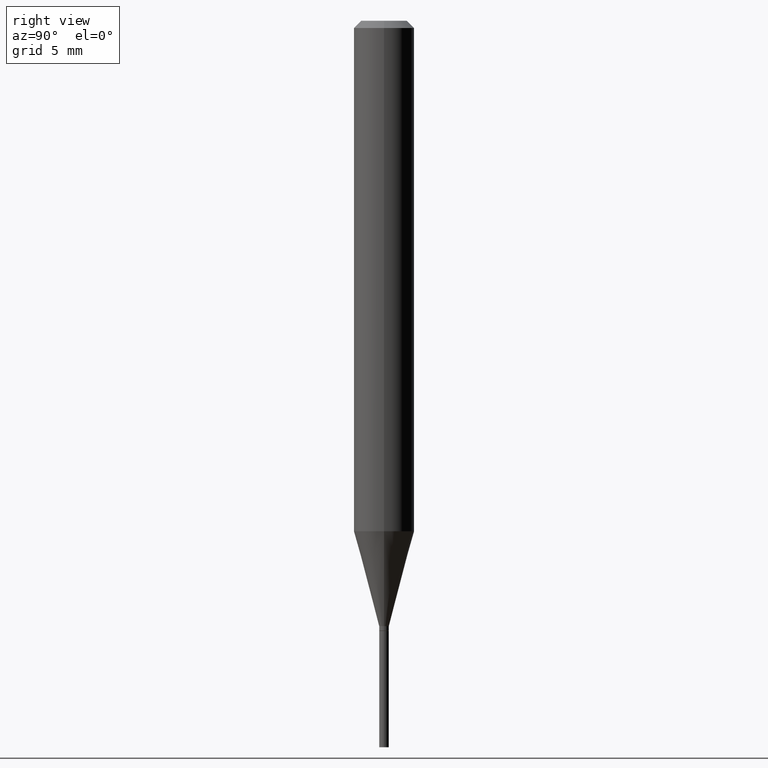
[diagram: clean part render]
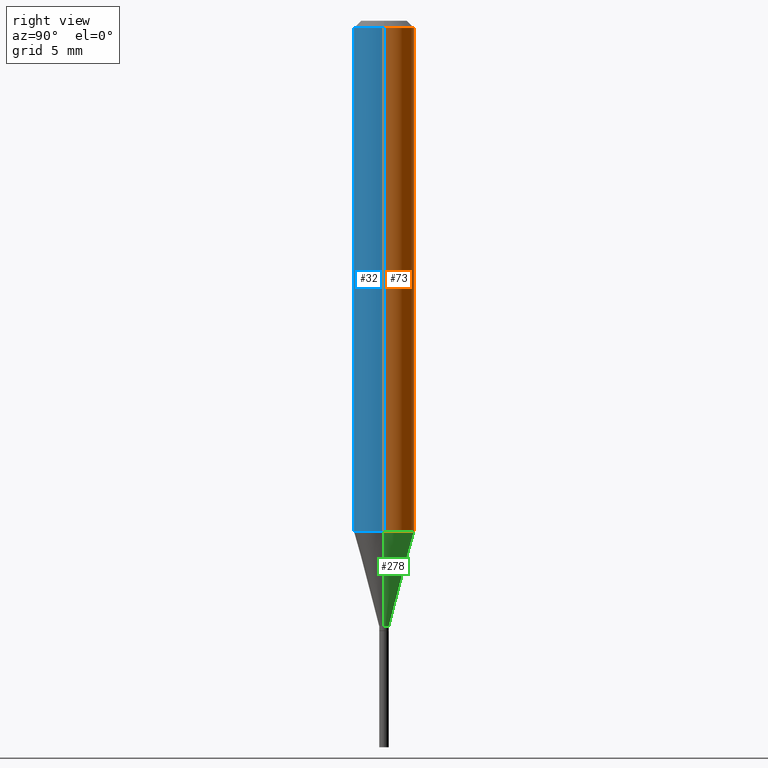
[diagram: same view with three faces highlighted in distinct colors, each labeled with its STEP entity id]
A machine part, right view with three faces highlighted in distinct colors.
Their STEP definitions:

[orange] entity #73 — the highlighted cylindrical surface (edge-blend (fillet) strip) has radius 1.5875 mm, axis along (-0, 0, 1).
#8 = CARTESIAN_POINT ( 'NONE',  ( -0.06250000000000000000, -3.236167211816206291E-15, -1.054067332602634188 ) ) ;
#11 = LINE ( 'NONE', #397, #440 ) ;
#24 = CARTESIAN_POINT ( 'NONE',  ( 0.06250000000000000000, -4.364351673553916694E-16, 3.047610484872459871E-30 ) ) ;
#43 = VERTEX_POINT ( 'NONE', #189 ) ;
#49 = VERTEX_POINT ( 'NONE', #8 ) ;
#65 = CARTESIAN_POINT ( 'NONE',  ( 0.000000000000000000, 0.000000000000000000, 0.000000000000000000 ) ) ;
#73 = ADVANCED_FACE ( 'NONE', ( #319 ), #450, .T. ) ;
#77 = ORIENTED_EDGE ( 'NONE', *, *, #171, .F. ) ;
#89 = VECTOR ( 'NONE', #287, 39.37007874015748143 ) ;
#94 = DIRECTION ( 'NONE',  ( 1.000000000000000000, -6.982962677686270655E-15, 0.000000000000000000 ) ) ;
#99 = ORIENTED_EDGE ( 'NONE', *, *, #123, .F. ) ;
#100 = DIRECTION ( 'NONE',  ( 1.000000000000000000, -6.982962677686266711E-15, 0.000000000000000000 ) ) ;
#119 = CARTESIAN_POINT ( 'NONE',  ( 0.06250000000000000000, -4.888073874380388472E-16, -0.01499999999999999944 ) ) ;
#123 = EDGE_CURVE ( 'NONE', #303, #243, #137, .T. ) ;
#126 = AXIS2_PLACEMENT_3D ( 'NONE', #313, #132, #94 ) ;
#132 = DIRECTION ( 'NONE',  ( -2.445468806185136597E-29, 3.491481338843145583E-15, 1.000000000000000000 ) ) ;
#137 = LINE ( 'NONE', #24, #89 ) ;
#140 = DIRECTION ( 'NONE',  ( -2.445468806185136597E-29, 3.491481338843145583E-15, 1.000000000000000000 ) ) ;
#153 = EDGE_LOOP ( 'NONE', ( #240, #198, #77, #99 ) ) ;
#158 = AXIS2_PLACEMENT_3D ( 'NONE', #413, #277, #100 ) ;
#171 = EDGE_CURVE ( 'NONE', #243, #43, #429, .T. ) ;
#189 = CARTESIAN_POINT ( 'NONE',  ( -0.06250000000000000000, -1.422225111024395377E-15, -0.01499999999999999944 ) ) ;
#198 = ORIENTED_EDGE ( 'NONE', *, *, #295, .T. ) ;
#205 = DIRECTION ( 'NONE',  ( 1.000000000000000000, -6.982962677686266711E-15, 4.876176775795935793E-29 ) ) ;
#225 = CARTESIAN_POINT ( 'NONE',  ( 0.06250000000000000000, -4.116691589021660182E-15, -1.054067332602634188 ) ) ;
#235 = CIRCLE ( 'NONE', #126, 0.06250000000000000000 ) ;
#240 = ORIENTED_EDGE ( 'NONE', *, *, #273, .T. ) ;
#243 = VERTEX_POINT ( 'NONE', #119 ) ;
#264 = DIRECTION ( 'NONE',  ( -2.445468806185136877E-29, 3.491481338843145188E-15, 1.000000000000000000 ) ) ;
#273 = EDGE_CURVE ( 'NONE', #303, #49, #235, .T. ) ;
#277 = DIRECTION ( 'NONE',  ( -2.445468806185136597E-29, 3.491481338843145583E-15, 1.000000000000000000 ) ) ;
#287 = DIRECTION ( 'NONE',  ( -2.445468806185136877E-29, 3.491481338843145188E-15, 1.000000000000000000 ) ) ;
#295 = EDGE_CURVE ( 'NONE', #49, #43, #11, .T. ) ;
#297 = AXIS2_PLACEMENT_3D ( 'NONE', #65, #140, #205 ) ;
#303 = VERTEX_POINT ( 'NONE', #225 ) ;
#313 = CARTESIAN_POINT ( 'NONE',  ( 2.577688781498515070E-29, -3.680256421666268512E-15, -1.054067332602634188 ) ) ;
#319 = FACE_OUTER_BOUND ( 'NONE', #153, .T. ) ;
#397 = CARTESIAN_POINT ( 'NONE',  ( -0.06250000000000000000, 4.440892098500626162E-16, -3.074334431409316114E-30 ) ) ;
#413 = CARTESIAN_POINT ( 'NONE',  ( 3.668203209277705088E-31, -5.237222008264718399E-17, -0.01499999999999999944 ) ) ;
#429 = CIRCLE ( 'NONE', #158, 0.06250000000000000000 ) ;
#440 = VECTOR ( 'NONE', #264, 39.37007874015748143 ) ;
#450 = CYLINDRICAL_SURFACE ( 'NONE', #297, 0.06250000000000000000 ) ;

[blue] entity #32 — the highlighted cylindrical surface (edge-blend (fillet) strip) has radius 1.5875 mm, axis along (-0, 0, 1).
#8 = CARTESIAN_POINT ( 'NONE',  ( -0.06250000000000000000, -3.236167211816206291E-15, -1.054067332602634188 ) ) ;
#11 = LINE ( 'NONE', #397, #440 ) ;
#21 = CARTESIAN_POINT ( 'NONE',  ( 3.668203209277705088E-31, -5.237222008264718399E-17, -0.01499999999999999944 ) ) ;
#22 = FACE_OUTER_BOUND ( 'NONE', #398, .T. ) ;
#24 = CARTESIAN_POINT ( 'NONE',  ( 0.06250000000000000000, -4.364351673553916694E-16, 3.047610484872459871E-30 ) ) ;
#32 = ADVANCED_FACE ( 'NONE', ( #22 ), #66, .T. ) ;
#37 = CARTESIAN_POINT ( 'NONE',  ( 2.577688781498515070E-29, -3.680256421666268512E-15, -1.054067332602634188 ) ) ;
#43 = VERTEX_POINT ( 'NONE', #189 ) ;
#49 = VERTEX_POINT ( 'NONE', #8 ) ;
#66 = CYLINDRICAL_SURFACE ( 'NONE', #203, 0.06250000000000000000 ) ;
#89 = VECTOR ( 'NONE', #287, 39.37007874015748143 ) ;
#92 = CARTESIAN_POINT ( 'NONE',  ( 0.000000000000000000, 0.000000000000000000, 0.000000000000000000 ) ) ;
#103 = DIRECTION ( 'NONE',  ( 1.000000000000000000, -6.982962677686266711E-15, 0.000000000000000000 ) ) ;
#107 = DIRECTION ( 'NONE',  ( 1.000000000000000000, -6.982962677686270655E-15, 0.000000000000000000 ) ) ;
#119 = CARTESIAN_POINT ( 'NONE',  ( 0.06250000000000000000, -4.888073874380388472E-16, -0.01499999999999999944 ) ) ;
#123 = EDGE_CURVE ( 'NONE', #303, #243, #137, .T. ) ;
#137 = LINE ( 'NONE', #24, #89 ) ;
#151 = EDGE_CURVE ( 'NONE', #43, #243, #316, .T. ) ;
#160 = ORIENTED_EDGE ( 'NONE', *, *, #295, .F. ) ;
#166 = AXIS2_PLACEMENT_3D ( 'NONE', #37, #290, #107 ) ;
#178 = CIRCLE ( 'NONE', #166, 0.06250000000000000000 ) ;
#189 = CARTESIAN_POINT ( 'NONE',  ( -0.06250000000000000000, -1.422225111024395377E-15, -0.01499999999999999944 ) ) ;
#192 = ORIENTED_EDGE ( 'NONE', *, *, #216, .T. ) ;
#203 = AXIS2_PLACEMENT_3D ( 'NONE', #92, #412, #448 ) ;
#216 = EDGE_CURVE ( 'NONE', #49, #303, #178, .T. ) ;
#225 = CARTESIAN_POINT ( 'NONE',  ( 0.06250000000000000000, -4.116691589021660182E-15, -1.054067332602634188 ) ) ;
#243 = VERTEX_POINT ( 'NONE', #119 ) ;
#264 = DIRECTION ( 'NONE',  ( -2.445468806185136877E-29, 3.491481338843145188E-15, 1.000000000000000000 ) ) ;
#285 = DIRECTION ( 'NONE',  ( -2.445468806185136597E-29, 3.491481338843145583E-15, 1.000000000000000000 ) ) ;
#287 = DIRECTION ( 'NONE',  ( -2.445468806185136877E-29, 3.491481338843145188E-15, 1.000000000000000000 ) ) ;
#290 = DIRECTION ( 'NONE',  ( -2.445468806185136597E-29, 3.491481338843145583E-15, 1.000000000000000000 ) ) ;
#295 = EDGE_CURVE ( 'NONE', #49, #43, #11, .T. ) ;
#303 = VERTEX_POINT ( 'NONE', #225 ) ;
#316 = CIRCLE ( 'NONE', #371, 0.06250000000000000000 ) ;
#341 = ORIENTED_EDGE ( 'NONE', *, *, #151, .F. ) ;
#367 = ORIENTED_EDGE ( 'NONE', *, *, #123, .T. ) ;
#371 = AXIS2_PLACEMENT_3D ( 'NONE', #21, #285, #103 ) ;
#397 = CARTESIAN_POINT ( 'NONE',  ( -0.06250000000000000000, 4.440892098500626162E-16, -3.074334431409316114E-30 ) ) ;
#398 = EDGE_LOOP ( 'NONE', ( #160, #192, #367, #341 ) ) ;
#412 = DIRECTION ( 'NONE',  ( -2.445468806185136597E-29, 3.491481338843145583E-15, 1.000000000000000000 ) ) ;
#440 = VECTOR ( 'NONE', #264, 39.37007874015748143 ) ;
#448 = DIRECTION ( 'NONE',  ( 1.000000000000000000, -6.982962677686266711E-15, 4.876176775795935793E-29 ) ) ;

[green] entity #278 — the highlighted conical surface has half-angle 15 deg.
#4 = AXIS2_PLACEMENT_3D ( 'NONE', #5, #220, #301 ) ;
#5 = CARTESIAN_POINT ( 'NONE',  ( 3.056836007731421306E-29, -4.364351673553932471E-15, -1.250000000000000000 ) ) ;
#8 = CARTESIAN_POINT ( 'NONE',  ( -0.06250000000000000000, -3.236167211816206291E-15, -1.054067332602634188 ) ) ;
#49 = VERTEX_POINT ( 'NONE', #8 ) ;
#58 = EDGE_CURVE ( 'NONE', #95, #303, #436, .T. ) ;
#61 = CARTESIAN_POINT ( 'NONE',  ( -0.009999999999999923880, -4.293297399977923178E-15, -1.250000000000000000 ) ) ;
#78 = EDGE_CURVE ( 'NONE', #95, #394, #134, .T. ) ;
#94 = DIRECTION ( 'NONE',  ( 1.000000000000000000, -6.982962677686270655E-15, 0.000000000000000000 ) ) ;
#95 = VERTEX_POINT ( 'NONE', #356 ) ;
#112 = ORIENTED_EDGE ( 'NONE', *, *, #334, .T. ) ;
#126 = AXIS2_PLACEMENT_3D ( 'NONE', #313, #132, #94 ) ;
#132 = DIRECTION ( 'NONE',  ( -2.445468806185136597E-29, 3.491481338843145583E-15, 1.000000000000000000 ) ) ;
#134 = CIRCLE ( 'NONE', #427, 0.009999999999999923880 ) ;
#152 = VECTOR ( 'NONE', #279, 39.37007874015747433 ) ;
#217 = CONICAL_SURFACE ( 'NONE', #4, 0.009999999999999923880, 0.2617993877991500740 ) ;
#220 = DIRECTION ( 'NONE',  ( -2.445468806185136597E-29, 3.491481338843145583E-15, 1.000000000000000000 ) ) ;
#222 = FACE_OUTER_BOUND ( 'NONE', #402, .T. ) ;
#225 = CARTESIAN_POINT ( 'NONE',  ( 0.06250000000000000000, -4.116691589021660182E-15, -1.054067332602634188 ) ) ;
#229 = CARTESIAN_POINT ( 'NONE',  ( 0.009999999999999923880, -4.434181300330794192E-15, -1.250000000000000000 ) ) ;
#235 = CIRCLE ( 'NONE', #126, 0.06250000000000000000 ) ;
#249 = CARTESIAN_POINT ( 'NONE',  ( 3.056836007731421306E-29, -4.364351673553932471E-15, -1.250000000000000000 ) ) ;
#273 = EDGE_CURVE ( 'NONE', #303, #49, #235, .T. ) ;
#274 = DIRECTION ( 'NONE',  ( 0.2588190451025213501, 1.565188264969621968E-15, 0.9659258262890682012 ) ) ;
#278 = ADVANCED_FACE ( 'NONE', ( #222 ), #217, .T. ) ;
#279 = DIRECTION ( 'NONE',  ( -0.2588190451025213501, 5.211531920934551042E-15, 0.9659258262890682012 ) ) ;
#301 = DIRECTION ( 'NONE',  ( 1.000000000000000000, -6.982962677686239889E-15, 0.000000000000000000 ) ) ;
#303 = VERTEX_POINT ( 'NONE', #225 ) ;
#313 = CARTESIAN_POINT ( 'NONE',  ( 2.577688781498515070E-29, -3.680256421666268512E-15, -1.054067332602634188 ) ) ;
#315 = DIRECTION ( 'NONE',  ( -2.445468806185136597E-29, 3.491481338843145583E-15, 1.000000000000000000 ) ) ;
#334 = EDGE_CURVE ( 'NONE', #394, #49, #359, .T. ) ;
#337 = ORIENTED_EDGE ( 'NONE', *, *, #58, .F. ) ;
#356 = CARTESIAN_POINT ( 'NONE',  ( 0.009999999999999923880, -4.434181300330794192E-15, -1.250000000000000000 ) ) ;
#359 = LINE ( 'NONE', #61, #152 ) ;
#386 = DIRECTION ( 'NONE',  ( 1.000000000000000000, -6.982962677686239889E-15, 0.000000000000000000 ) ) ;
#394 = VERTEX_POINT ( 'NONE', #439 ) ;
#402 = EDGE_LOOP ( 'NONE', ( #465, #112, #425, #337 ) ) ;
#425 = ORIENTED_EDGE ( 'NONE', *, *, #273, .F. ) ;
#427 = AXIS2_PLACEMENT_3D ( 'NONE', #249, #315, #386 ) ;
#436 = LINE ( 'NONE', #229, #453 ) ;
#439 = CARTESIAN_POINT ( 'NONE',  ( -0.009999999999999923880, -3.764732305897064537E-15, -1.250000000000000000 ) ) ;
#453 = VECTOR ( 'NONE', #274, 39.37007874015747433 ) ;
#465 = ORIENTED_EDGE ( 'NONE', *, *, #78, .T. ) ;